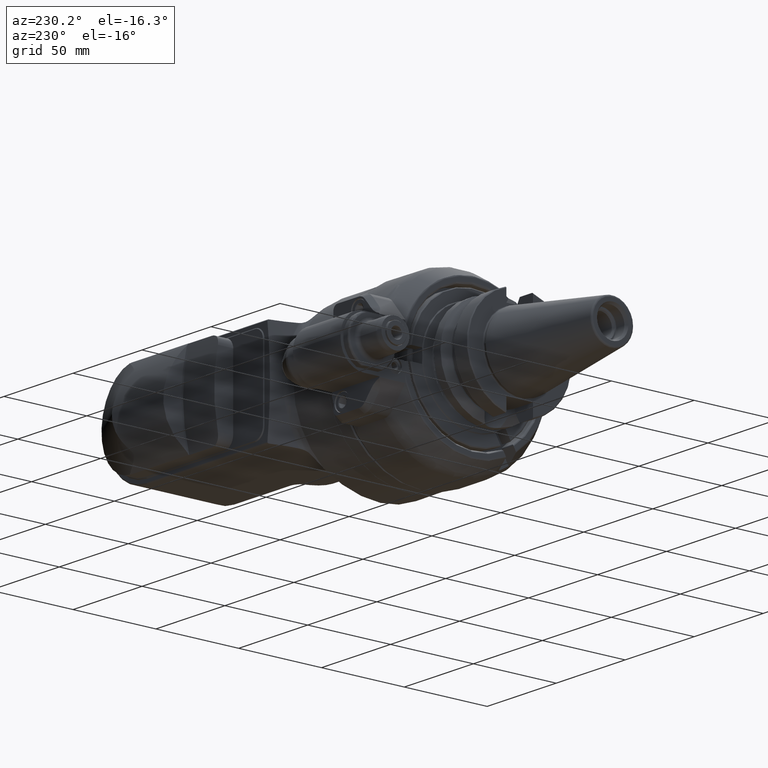
[diagram: clean part render]
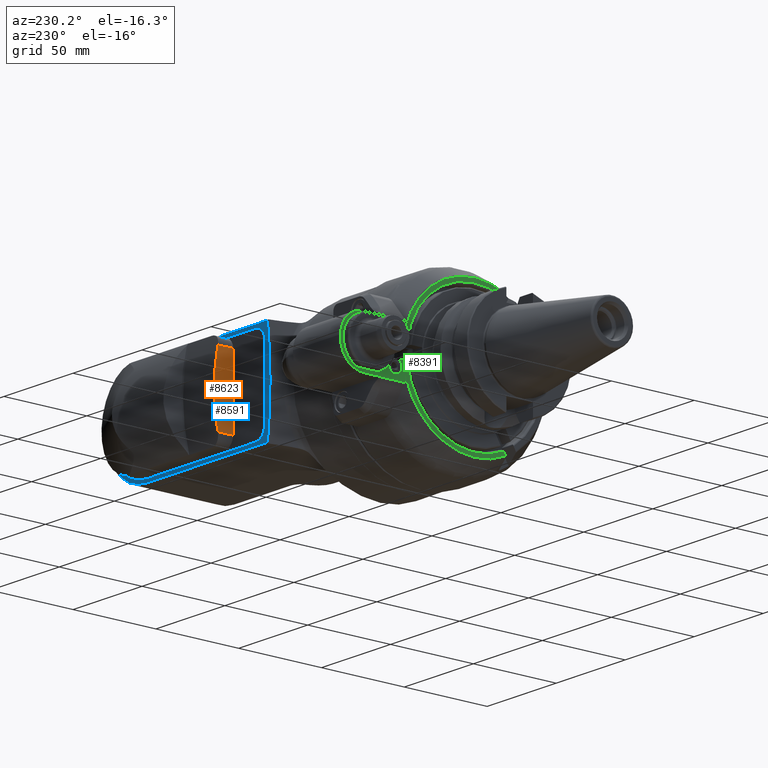
[diagram: same view with three faces highlighted in distinct colors, each labeled with its STEP entity id]
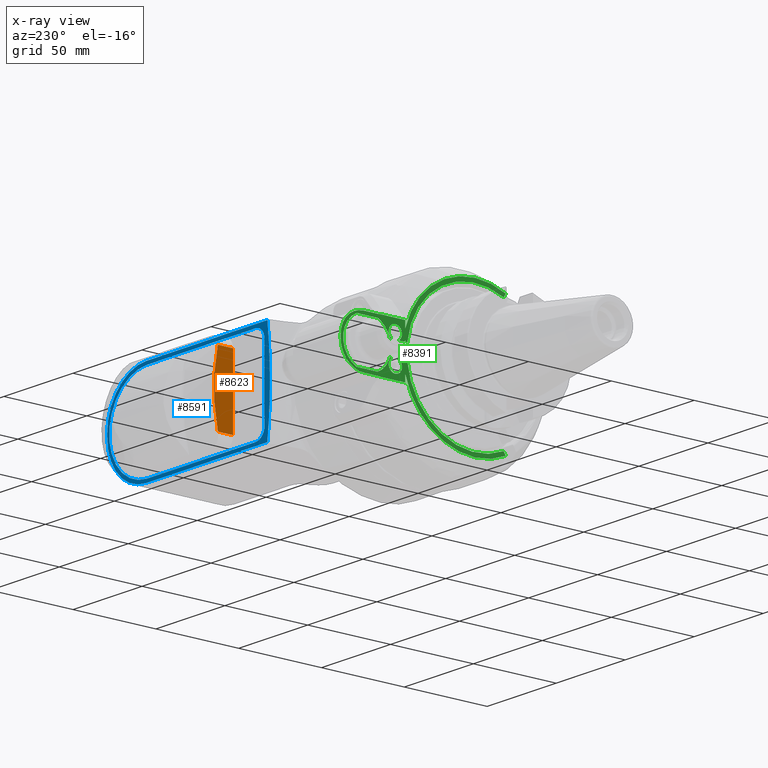
[diagram: x-ray of the same camera — body ghosted, the three highlighted faces saturated]
A machine part, auxiliary view with three faces highlighted in distinct colors.
The next image is the same camera in x-ray (body ghosted, the three faces saturated) — at least one of them is partly hidden behind the body in this view.
Their STEP definitions:

[orange] entity #8623 — the highlighted planar face has unit normal (-1, 0, 0).
#668=LINE('',#16269,#1259);
#669=LINE('',#16272,#1260);
#670=LINE('',#16273,#1261);
#1259=VECTOR('',#11428,9.270138590473);
#1260=VECTOR('',#11431,42.);
#1261=VECTOR('',#11432,9.270138590473);
#2015=FACE_OUTER_BOUND('',#2569,.T.);
#2569=EDGE_LOOP('',(#6919,#6920,#6921,#6922));
#3146=CIRCLE('',#9470,100.);
#3870=VERTEX_POINT('',#16233);
#3871=VERTEX_POINT('',#16244);
#3874=VERTEX_POINT('',#16265);
#3875=VERTEX_POINT('',#16271);
#4956=EDGE_CURVE('',#3871,#3870,#3146,.T.);
#4964=EDGE_CURVE('',#3871,#3874,#668,.T.);
#4965=EDGE_CURVE('',#3875,#3874,#669,.T.);
#4966=EDGE_CURVE('',#3875,#3870,#670,.T.);
#6919=ORIENTED_EDGE('',*,*,#4965,.T.);
#6920=ORIENTED_EDGE('',*,*,#4964,.F.);
#6921=ORIENTED_EDGE('',*,*,#4956,.T.);
#6922=ORIENTED_EDGE('',*,*,#4966,.F.);
#8252=PLANE('',#9476);
#8623=ADVANCED_FACE('',(#2015),#8252,.T.);
#9470=AXIS2_PLACEMENT_3D('',#16245,#11411,#11412);
#9476=AXIS2_PLACEMENT_3D('',#16270,#11429,#11430);
#11411=DIRECTION('center_axis',(-1.,0.,0.));
#11412=DIRECTION('ref_axis',(0.,0.977701385904714,0.210000000000003));
#11428=DIRECTION('',(0.,-1.,-2.721023733713E-14));
#11429=DIRECTION('center_axis',(-1.,0.,0.));
#11430=DIRECTION('ref_axis',(0.,0.,-1.));
#11431=DIRECTION('',(0.,0.,1.));
#11432=DIRECTION('',(0.,1.,-2.644375177834E-14));
#16233=CARTESIAN_POINT('',(-63.,69.77013859047,-21.));
#16244=CARTESIAN_POINT('',(-63.,69.77013859047,21.));
#16245=CARTESIAN_POINT('Origin',(-63.,-28.,0.));
#16265=CARTESIAN_POINT('',(-63.,60.5,21.));
#16269=CARTESIAN_POINT('',(-63.,69.77013859047,21.));
#16270=CARTESIAN_POINT('Origin',(-63.,60.,21.));
#16271=CARTESIAN_POINT('',(-63.,60.5,-21.));
#16272=CARTESIAN_POINT('',(-63.,60.5,-21.));
#16273=CARTESIAN_POINT('',(-63.,60.5,-21.));

[blue] entity #8591 — the highlighted planar face has unit normal (0, -1, 0).
#65=(
BOUNDED_CURVE()
B_SPLINE_CURVE(2,(#15696,#15697,#15698),.UNSPECIFIED.,.F.,.F.)
B_SPLINE_CURVE_WITH_KNOTS((3,3),(-64.9448907529111,-37.8298054529916),
 .UNSPECIFIED.)
CURVE()
GEOMETRIC_REPRESENTATION_ITEM()
RATIONAL_B_SPLINE_CURVE((4.47094782298554,4.99029878578704,4.47094782298539))
REPRESENTATION_ITEM('')
);
#599=LINE('',#15703,#1190);
#617=LINE('',#15977,#1208);
#618=LINE('',#15981,#1209);
#619=LINE('',#15984,#1210);
#620=LINE('',#15986,#1211);
#621=LINE('',#15992,#1212);
#622=LINE('',#15996,#1213);
#623=LINE('',#15999,#1214);
#1190=VECTOR('',#11209,87.60252630069);
#1208=VECTOR('',#11273,51.6025263007);
#1209=VECTOR('',#11276,2.);
#1210=VECTOR('',#11279,10.);
#1211=VECTOR('',#11280,26.);
#1212=VECTOR('',#11285,78.5);
#1213=VECTOR('',#11288,78.5);
#1214=VECTOR('',#11291,42.);
#1718=FACE_BOUND('',#2536,.T.);
#1983=FACE_OUTER_BOUND('',#2535,.T.);
#2535=EDGE_LOOP('',(#6761,#6762,#6763,#6764,#6765,#6766,#6767,#6768));
#2536=EDGE_LOOP('',(#6769,#6770,#6771,#6772,#6773,#6774));
#3128=CIRCLE('',#9425,28.5);
#3129=CIRCLE('',#9426,28.5);
#3130=CIRCLE('',#9427,6.5);
#3131=CIRCLE('',#9428,27.5);
#3132=CIRCLE('',#9429,6.5);
#3798=VERTEX_POINT('',#15677);
#3802=VERTEX_POINT('',#15692);
#3804=VERTEX_POINT('',#15702);
#3827=VERTEX_POINT('',#15973);
#3828=VERTEX_POINT('',#15979);
#3829=VERTEX_POINT('',#15980);
#3830=VERTEX_POINT('',#15983);
#3831=VERTEX_POINT('',#15985);
#3832=VERTEX_POINT('',#15988);
#3833=VERTEX_POINT('',#15989);
#3834=VERTEX_POINT('',#15991);
#3835=VERTEX_POINT('',#15993);
#3836=VERTEX_POINT('',#15995);
#3837=VERTEX_POINT('',#15997);
#4845=EDGE_CURVE('',#3802,#3798,#65,.T.);
#4847=EDGE_CURVE('',#3798,#3804,#599,.T.);
#4886=EDGE_CURVE('',#3827,#3802,#617,.T.);
#4887=EDGE_CURVE('',#3828,#3829,#618,.T.);
#4888=EDGE_CURVE('',#3829,#3804,#3128,.T.);
#4889=EDGE_CURVE('',#3830,#3827,#619,.T.);
#4890=EDGE_CURVE('',#3831,#3830,#620,.T.);
#4891=EDGE_CURVE('',#3831,#3828,#3129,.T.);
#4892=EDGE_CURVE('',#3832,#3833,#3130,.T.);
#4893=EDGE_CURVE('',#3833,#3834,#621,.T.);
#4894=EDGE_CURVE('',#3834,#3835,#3131,.T.);
#4895=EDGE_CURVE('',#3835,#3836,#622,.T.);
#4896=EDGE_CURVE('',#3836,#3837,#3132,.T.);
#4897=EDGE_CURVE('',#3837,#3832,#623,.T.);
#6761=ORIENTED_EDGE('',*,*,#4887,.T.);
#6762=ORIENTED_EDGE('',*,*,#4888,.T.);
#6763=ORIENTED_EDGE('',*,*,#4847,.F.);
#6764=ORIENTED_EDGE('',*,*,#4845,.F.);
#6765=ORIENTED_EDGE('',*,*,#4886,.F.);
#6766=ORIENTED_EDGE('',*,*,#4889,.F.);
#6767=ORIENTED_EDGE('',*,*,#4890,.F.);
#6768=ORIENTED_EDGE('',*,*,#4891,.T.);
#6769=ORIENTED_EDGE('',*,*,#4892,.T.);
#6770=ORIENTED_EDGE('',*,*,#4893,.T.);
#6771=ORIENTED_EDGE('',*,*,#4894,.T.);
#6772=ORIENTED_EDGE('',*,*,#4895,.T.);
#6773=ORIENTED_EDGE('',*,*,#4896,.T.);
#6774=ORIENTED_EDGE('',*,*,#4897,.T.);
#8234=PLANE('',#9424);
#8591=ADVANCED_FACE('',(#1983,#1718),#8234,.F.);
#9424=AXIS2_PLACEMENT_3D('',#15978,#11274,#11275);
#9425=AXIS2_PLACEMENT_3D('',#15982,#11277,#11278);
#9426=AXIS2_PLACEMENT_3D('',#15987,#11281,#11282);
#9427=AXIS2_PLACEMENT_3D('',#15990,#11283,#11284);
#9428=AXIS2_PLACEMENT_3D('',#15994,#11286,#11287);
#9429=AXIS2_PLACEMENT_3D('',#15998,#11289,#11290);
#11209=DIRECTION('',(1.,0.,0.));
#11273=DIRECTION('',(-1.,0.,-1.980058976316E-13));
#11274=DIRECTION('center_axis',(0.,-1.,0.));
#11275=DIRECTION('ref_axis',(-1.,0.,0.));
#11276=DIRECTION('',(0.,0.,-1.));
#11277=DIRECTION('center_axis',(0.,1.,0.));
#11278=DIRECTION('ref_axis',(1.,0.,0.));
#11279=DIRECTION('',(-1.,0.,0.));
#11280=DIRECTION('',(-1.,0.,0.));
#11281=DIRECTION('center_axis',(0.,1.,0.));
#11282=DIRECTION('ref_axis',(0.,0.,1.));
#11283=DIRECTION('center_axis',(0.,-1.,0.));
#11284=DIRECTION('ref_axis',(-1.,0.,0.));
#11285=DIRECTION('',(1.,0.,0.));
#11286=DIRECTION('center_axis',(0.,-1.,0.));
#11287=DIRECTION('ref_axis',(0.,0.,-1.));
#11288=DIRECTION('',(-1.,0.,0.));
#11289=DIRECTION('center_axis',(0.,-1.,0.));
#11290=DIRECTION('ref_axis',(1.53039973856E-14,0.,1.));
#11291=DIRECTION('',(0.,0.,-1.));
#15677=CARTESIAN_POINT('',(-86.6025263007,59.5,-29.5));
#15692=CARTESIAN_POINT('',(-86.6025263007,59.5,29.49999999999));
#15696=CARTESIAN_POINT('Ctrl Pts',(-86.6025263006967,59.5,29.4999999999888));
#15697=CARTESIAN_POINT('Ctrl Pts',(-90.1137020735877,59.5,-3.98614474761416E-12));
#15698=CARTESIAN_POINT('Ctrl Pts',(-86.6025263006955,59.5,-29.4999999999988));
#15702=CARTESIAN_POINT('',(0.999999999998,59.5,-29.5));
#15703=CARTESIAN_POINT('',(-86.6025263007,59.5,-29.5));
#15973=CARTESIAN_POINT('',(-35.,59.5,29.5));
#15977=CARTESIAN_POINT('',(-35.,59.5,29.5));
#15978=CARTESIAN_POINT('Origin',(37.,59.5,-79.8000024));
#15979=CARTESIAN_POINT('',(29.5,59.5,1.));
#15980=CARTESIAN_POINT('',(29.5,59.5,-1.));
#15981=CARTESIAN_POINT('',(29.5,59.5,1.));
#15982=CARTESIAN_POINT('Origin',(0.999999999998,59.5,-1.));
#15983=CARTESIAN_POINT('',(-25.,59.5,29.5));
#15984=CARTESIAN_POINT('',(-25.,59.5,29.5));
#15985=CARTESIAN_POINT('',(0.999999999998,59.5,29.5));
#15986=CARTESIAN_POINT('',(0.999999999998,59.5,29.5));
#15987=CARTESIAN_POINT('Origin',(0.999999999998,59.5,1.));
#15988=CARTESIAN_POINT('',(-84.5,59.5,-21.));
#15989=CARTESIAN_POINT('',(-78.,59.5,-27.5));
#15990=CARTESIAN_POINT('Origin',(-78.,59.5,-21.));
#15991=CARTESIAN_POINT('',(0.5,59.5,-27.5));
#15992=CARTESIAN_POINT('',(-78.,59.5,-27.5));
#15993=CARTESIAN_POINT('',(0.5,59.5,27.5));
#15994=CARTESIAN_POINT('Origin',(0.5,59.5,0.));
#15995=CARTESIAN_POINT('',(-78.,59.5,27.5));
#15996=CARTESIAN_POINT('',(0.5,59.5,27.5));
#15997=CARTESIAN_POINT('',(-84.5,59.5,21.));
#15998=CARTESIAN_POINT('Origin',(-78.,59.5,21.));
#15999=CARTESIAN_POINT('',(-84.5,59.5,21.));

[green] entity #8391 — the highlighted planar face has unit normal (-1, 0, 0).
#344=LINE('',#12886,#935);
#361=LINE('',#12936,#952);
#362=LINE('',#12943,#953);
#363=LINE('',#12947,#954);
#364=LINE('',#12951,#955);
#365=LINE('',#12953,#956);
#366=LINE('',#12957,#957);
#367=LINE('',#12959,#958);
#368=LINE('',#12965,#959);
#369=LINE('',#12969,#960);
#370=LINE('',#12973,#961);
#371=LINE('',#12975,#962);
#372=LINE('',#12977,#963);
#373=LINE('',#12979,#964);
#374=LINE('',#12981,#965);
#375=LINE('',#12983,#966);
#376=LINE('',#12985,#967);
#377=LINE('',#12989,#968);
#378=LINE('',#12992,#969);
#379=LINE('',#12994,#970);
#380=LINE('',#12998,#971);
#381=LINE('',#13002,#972);
#382=LINE('',#13008,#973);
#383=LINE('',#13010,#974);
#384=LINE('',#13014,#975);
#385=LINE('',#13015,#976);
#935=VECTOR('',#10082,0.1128483482606);
#952=VECTOR('',#10123,15.5);
#953=VECTOR('',#10130,12.84523257867);
#954=VECTOR('',#10133,12.84523257867);
#955=VECTOR('',#10136,0.7159512479098);
#956=VECTOR('',#10137,0.3775010008008);
#957=VECTOR('',#10140,0.3775010008008);
#958=VECTOR('',#10141,2.5);
#959=VECTOR('',#10146,0.247699451442);
#960=VECTOR('',#10149,2.43090617210213);
#961=VECTOR('',#10152,4.088942069421);
#962=VECTOR('',#10153,15.5);
#963=VECTOR('',#10154,0.1128483482606);
#964=VECTOR('',#10155,0.7629679276389);
#965=VECTOR('',#10156,10.);
#966=VECTOR('',#10157,10.);
#967=VECTOR('',#10158,8.70839142844);
#968=VECTOR('',#10161,2.);
#969=VECTOR('',#10164,9.5);
#970=VECTOR('',#10165,4.088942069421);
#971=VECTOR('',#10168,2.43091427895297);
#972=VECTOR('',#10171,0.2476994514422);
#973=VECTOR('',#10176,2.5);
#974=VECTOR('',#10177,0.3775010008008);
#975=VECTOR('',#10180,0.3775010008008);
#976=VECTOR('',#10181,0.7159512479098);
#1783=FACE_OUTER_BOUND('',#2309,.T.);
#2309=EDGE_LOOP('',(#5642,#5643,#5644,#5645,#5646,#5647,#5648,#5649,#5650,
#5651,#5652,#5653,#5654,#5655,#5656,#5657,#5658,#5659,#5660,#5661,#5662,
#5663,#5664,#5665,#5666,#5667,#5668,#5669,#5670,#5671,#5672,#5673,#5674,
#5675,#5676,#5677,#5678,#5679,#5680,#5681,#5682));
#2898=CIRCLE('',#8979,14.5);
#2899=CIRCLE('',#8980,14.5);
#2900=CIRCLE('',#8981,14.5);
#2901=CIRCLE('',#8982,4.);
#2902=CIRCLE('',#8983,1.);
#2903=CIRCLE('',#8984,1.);
#2904=CIRCLE('',#8985,41.);
#2905=CIRCLE('',#8986,43.42264973081);
#2906=CIRCLE('',#8987,14.);
#2907=CIRCLE('',#8988,14.);
#2908=CIRCLE('',#8989,43.42264973081);
#2909=CIRCLE('',#8990,41.);
#2910=CIRCLE('',#8991,1.);
#2911=CIRCLE('',#8992,1.);
#2912=CIRCLE('',#8993,4.);
#3420=VERTEX_POINT('',#12883);
#3421=VERTEX_POINT('',#12885);
#3436=VERTEX_POINT('',#12935);
#3437=VERTEX_POINT('',#12939);
#3438=VERTEX_POINT('',#12940);
#3439=VERTEX_POINT('',#12942);
#3440=VERTEX_POINT('',#12944);
#3441=VERTEX_POINT('',#12946);
#3442=VERTEX_POINT('',#12948);
#3443=VERTEX_POINT('',#12950);
#3444=VERTEX_POINT('',#12952);
#3445=VERTEX_POINT('',#12954);
#3446=VERTEX_POINT('',#12956);
#3447=VERTEX_POINT('',#12958);
#3448=VERTEX_POINT('',#12960);
#3449=VERTEX_POINT('',#12962);
#3450=VERTEX_POINT('',#12964);
#3451=VERTEX_POINT('',#12966);
#3452=VERTEX_POINT('',#12968);
#3453=VERTEX_POINT('',#12970);
#3454=VERTEX_POINT('',#12972);
#3455=VERTEX_POINT('',#12974);
#3456=VERTEX_POINT('',#12976);
#3457=VERTEX_POINT('',#12978);
#3458=VERTEX_POINT('',#12980);
#3459=VERTEX_POINT('',#12982);
#3460=VERTEX_POINT('',#12984);
#3461=VERTEX_POINT('',#12986);
#3462=VERTEX_POINT('',#12988);
#3463=VERTEX_POINT('',#12990);
#3464=VERTEX_POINT('',#12993);
#3465=VERTEX_POINT('',#12995);
#3466=VERTEX_POINT('',#12997);
#3467=VERTEX_POINT('',#12999);
#3468=VERTEX_POINT('',#13001);
#3469=VERTEX_POINT('',#13003);
#3470=VERTEX_POINT('',#13005);
#3471=VERTEX_POINT('',#13007);
#3472=VERTEX_POINT('',#13009);
#3473=VERTEX_POINT('',#13011);
#3474=VERTEX_POINT('',#13013);
#4269=EDGE_CURVE('',#3421,#3420,#344,.T.);
#4292=EDGE_CURVE('',#3436,#3420,#361,.T.);
#4294=EDGE_CURVE('',#3437,#3438,#2898,.T.);
#4295=EDGE_CURVE('',#3439,#3437,#362,.T.);
#4296=EDGE_CURVE('',#3440,#3439,#2899,.T.);
#4297=EDGE_CURVE('',#3441,#3440,#363,.T.);
#4298=EDGE_CURVE('',#3442,#3441,#2900,.T.);
#4299=EDGE_CURVE('',#3442,#3443,#364,.T.);
#4300=EDGE_CURVE('',#3444,#3443,#365,.T.);
#4301=EDGE_CURVE('',#3444,#3445,#2901,.T.);
#4302=EDGE_CURVE('',#3446,#3445,#366,.T.);
#4303=EDGE_CURVE('',#3446,#3447,#367,.T.);
#4304=EDGE_CURVE('',#3447,#3448,#2902,.T.);
#4305=EDGE_CURVE('',#3448,#3449,#2903,.T.);
#4306=EDGE_CURVE('',#3450,#3449,#368,.T.);
#4307=EDGE_CURVE('',#3450,#3451,#2904,.T.);
#4308=EDGE_CURVE('',#3451,#3452,#369,.T.);
#4309=EDGE_CURVE('',#3452,#3453,#2905,.T.);
#4310=EDGE_CURVE('',#3453,#3454,#370,.T.);
#4311=EDGE_CURVE('',#3455,#3454,#371,.T.);
#4312=EDGE_CURVE('',#3455,#3456,#372,.T.);
#4313=EDGE_CURVE('',#3457,#3456,#373,.T.);
#4314=EDGE_CURVE('',#3457,#3458,#374,.T.);
#4315=EDGE_CURVE('',#3458,#3459,#375,.T.);
#4316=EDGE_CURVE('',#3460,#3459,#376,.T.);
#4317=EDGE_CURVE('',#3460,#3461,#2906,.T.);
#4318=EDGE_CURVE('',#3461,#3462,#377,.T.);
#4319=EDGE_CURVE('',#3462,#3463,#2907,.T.);
#4320=EDGE_CURVE('',#3463,#3421,#378,.T.);
#4321=EDGE_CURVE('',#3464,#3436,#379,.T.);
#4322=EDGE_CURVE('',#3464,#3465,#2908,.T.);
#4323=EDGE_CURVE('',#3465,#3466,#380,.T.);
#4324=EDGE_CURVE('',#3466,#3467,#2909,.T.);
#4325=EDGE_CURVE('',#3467,#3468,#381,.T.);
#4326=EDGE_CURVE('',#3468,#3469,#2910,.T.);
#4327=EDGE_CURVE('',#3469,#3470,#2911,.T.);
#4328=EDGE_CURVE('',#3470,#3471,#382,.T.);
#4329=EDGE_CURVE('',#3472,#3471,#383,.T.);
#4330=EDGE_CURVE('',#3472,#3473,#2912,.T.);
#4331=EDGE_CURVE('',#3474,#3473,#384,.T.);
#4332=EDGE_CURVE('',#3474,#3438,#385,.T.);
#5642=ORIENTED_EDGE('',*,*,#4294,.F.);
#5643=ORIENTED_EDGE('',*,*,#4295,.F.);
#5644=ORIENTED_EDGE('',*,*,#4296,.F.);
#5645=ORIENTED_EDGE('',*,*,#4297,.F.);
#5646=ORIENTED_EDGE('',*,*,#4298,.F.);
#5647=ORIENTED_EDGE('',*,*,#4299,.T.);
#5648=ORIENTED_EDGE('',*,*,#4300,.F.);
#5649=ORIENTED_EDGE('',*,*,#4301,.T.);
#5650=ORIENTED_EDGE('',*,*,#4302,.F.);
#5651=ORIENTED_EDGE('',*,*,#4303,.T.);
#5652=ORIENTED_EDGE('',*,*,#4304,.T.);
#5653=ORIENTED_EDGE('',*,*,#4305,.T.);
#5654=ORIENTED_EDGE('',*,*,#4306,.F.);
#5655=ORIENTED_EDGE('',*,*,#4307,.T.);
#5656=ORIENTED_EDGE('',*,*,#4308,.T.);
#5657=ORIENTED_EDGE('',*,*,#4309,.T.);
#5658=ORIENTED_EDGE('',*,*,#4310,.T.);
#5659=ORIENTED_EDGE('',*,*,#4311,.F.);
#5660=ORIENTED_EDGE('',*,*,#4312,.T.);
#5661=ORIENTED_EDGE('',*,*,#4313,.F.);
#5662=ORIENTED_EDGE('',*,*,#4314,.T.);
#5663=ORIENTED_EDGE('',*,*,#4315,.T.);
#5664=ORIENTED_EDGE('',*,*,#4316,.F.);
#5665=ORIENTED_EDGE('',*,*,#4317,.T.);
#5666=ORIENTED_EDGE('',*,*,#4318,.T.);
#5667=ORIENTED_EDGE('',*,*,#4319,.T.);
#5668=ORIENTED_EDGE('',*,*,#4320,.T.);
#5669=ORIENTED_EDGE('',*,*,#4269,.T.);
#5670=ORIENTED_EDGE('',*,*,#4292,.F.);
#5671=ORIENTED_EDGE('',*,*,#4321,.F.);
#5672=ORIENTED_EDGE('',*,*,#4322,.T.);
#5673=ORIENTED_EDGE('',*,*,#4323,.T.);
#5674=ORIENTED_EDGE('',*,*,#4324,.T.);
#5675=ORIENTED_EDGE('',*,*,#4325,.T.);
#5676=ORIENTED_EDGE('',*,*,#4326,.T.);
#5677=ORIENTED_EDGE('',*,*,#4327,.T.);
#5678=ORIENTED_EDGE('',*,*,#4328,.T.);
#5679=ORIENTED_EDGE('',*,*,#4329,.F.);
#5680=ORIENTED_EDGE('',*,*,#4330,.T.);
#5681=ORIENTED_EDGE('',*,*,#4331,.F.);
#5682=ORIENTED_EDGE('',*,*,#4332,.T.);
#8143=PLANE('',#8978);
#8391=ADVANCED_FACE('',(#1783),#8143,.T.);
#8978=AXIS2_PLACEMENT_3D('',#12938,#10126,#10127);
#8979=AXIS2_PLACEMENT_3D('',#12941,#10128,#10129);
#8980=AXIS2_PLACEMENT_3D('',#12945,#10131,#10132);
#8981=AXIS2_PLACEMENT_3D('',#12949,#10134,#10135);
#8982=AXIS2_PLACEMENT_3D('',#12955,#10138,#10139);
#8983=AXIS2_PLACEMENT_3D('',#12961,#10142,#10143);
#8984=AXIS2_PLACEMENT_3D('',#12963,#10144,#10145);
#8985=AXIS2_PLACEMENT_3D('',#12967,#10147,#10148);
#8986=AXIS2_PLACEMENT_3D('',#12971,#10150,#10151);
#8987=AXIS2_PLACEMENT_3D('',#12987,#10159,#10160);
#8988=AXIS2_PLACEMENT_3D('',#12991,#10162,#10163);
#8989=AXIS2_PLACEMENT_3D('',#12996,#10166,#10167);
#8990=AXIS2_PLACEMENT_3D('',#13000,#10169,#10170);
#8991=AXIS2_PLACEMENT_3D('',#13004,#10172,#10173);
#8992=AXIS2_PLACEMENT_3D('',#13006,#10174,#10175);
#8993=AXIS2_PLACEMENT_3D('',#13012,#10178,#10179);
#10082=DIRECTION('',(0.,0.,-1.));
#10123=DIRECTION('',(0.,1.,0.));
#10126=DIRECTION('center_axis',(-1.,0.,0.));
#10127=DIRECTION('ref_axis',(0.,-1.,0.));
#10128=DIRECTION('center_axis',(-1.,0.,0.));
#10129=DIRECTION('ref_axis',(0.,-0.442939054436718,-0.896551724137936));
#10130=DIRECTION('',(0.,-1.,0.));
#10131=DIRECTION('center_axis',(-1.,0.,0.));
#10132=DIRECTION('ref_axis',(0.,0.442939054436718,0.896551724137936));
#10133=DIRECTION('',(0.,1.,0.));
#10134=DIRECTION('center_axis',(-1.,0.,0.));
#10135=DIRECTION('ref_axis',(0.,-0.950624051868294,0.310344827586198));
#10136=DIRECTION('',(0.,-1.,0.));
#10137=DIRECTION('',(0.,0.,-1.));
#10138=DIRECTION('center_axis',(1.,0.,0.));
#10139=DIRECTION('ref_axis',(0.,0.625,-0.7806247497998));
#10140=DIRECTION('',(0.,3.764454845168E-14,1.));
#10141=DIRECTION('',(0.,-1.,0.));
#10142=DIRECTION('center_axis',(-1.,0.,0.));
#10143=DIRECTION('ref_axis',(0.,0.,-1.));
#10144=DIRECTION('center_axis',(-1.,0.,0.));
#10145=DIRECTION('ref_axis',(0.,1.,0.));
#10146=DIRECTION('',(-2.294854450823E-13,1.,-2.868568063529E-14));
#10147=DIRECTION('center_axis',(1.,0.,0.));
#10148=DIRECTION('ref_axis',(0.,0.993958549964826,0.109756097561003));
#10149=DIRECTION('',(0.,-0.500000000012273,0.866025403777353));
#10150=DIRECTION('center_axis',(-1.,0.,0.));
#10151=DIRECTION('ref_axis',(0.,-0.428568809891686,0.90350914504947));
#10152=DIRECTION('',(0.,0.,1.));
#10153=DIRECTION('',(0.,-1.,0.));
#10154=DIRECTION('',(-1.007430232466E-12,0.,-1.));
#10155=DIRECTION('',(9.68539329664E-13,-1.,-3.073494259101E-9));
#10156=DIRECTION('',(0.,0.859070673556442,-0.511856989632144));
#10157=DIRECTION('',(0.,0.150249419540475,0.98864812341285));
#10158=DIRECTION('',(0.,-1.,0.));
#10159=DIRECTION('center_axis',(-1.,0.,0.));
#10160=DIRECTION('ref_axis',(0.,0.,1.));
#10161=DIRECTION('',(0.,0.,-1.));
#10162=DIRECTION('center_axis',(-1.,0.,0.));
#10163=DIRECTION('ref_axis',(0.,1.,0.));
#10164=DIRECTION('',(0.,-1.,0.));
#10165=DIRECTION('',(0.,0.,-1.));
#10166=DIRECTION('center_axis',(-1.,0.,0.));
#10167=DIRECTION('ref_axis',(0.,0.967237150666087,-0.253874564246497));
#10168=DIRECTION('',(0.,0.500000000011306,0.866025403777911));
#10169=DIRECTION('center_axis',(1.,0.,0.));
#10170=DIRECTION('ref_axis',(0.,-0.424245838651586,-0.905547054761271));
#10171=DIRECTION('',(-2.294854450821E-13,1.,0.));
#10172=DIRECTION('center_axis',(-1.,0.,0.));
#10173=DIRECTION('ref_axis',(0.,1.42108547152E-14,1.));
#10174=DIRECTION('center_axis',(-1.,0.,0.));
#10175=DIRECTION('ref_axis',(0.,-1.,-1.216804434989E-13));
#10176=DIRECTION('',(0.,1.,0.));
#10177=DIRECTION('',(0.,3.764454845168E-14,1.));
#10178=DIRECTION('center_axis',(1.,0.,0.));
#10179=DIRECTION('ref_axis',(0.,-0.625,0.7806247497998));
#10180=DIRECTION('',(0.,0.,-1.));
#10181=DIRECTION('',(0.,1.,0.));
#12883=CARTESIAN_POINT('',(-165.5,57.5,-15.11284834826));
#12885=CARTESIAN_POINT('',(-165.5,57.5,-15.));
#12886=CARTESIAN_POINT('',(-165.5,57.5,-15.));
#12935=CARTESIAN_POINT('',(-165.5,42.,-15.11284834826));
#12936=CARTESIAN_POINT('',(-165.5,42.,-15.11284834826));
#12938=CARTESIAN_POINT('Origin',(-165.5,-40.75,0.));
#12939=CARTESIAN_POINT('',(-165.5,58.57738371067,-13.));
#12940=CARTESIAN_POINT('',(-165.5,51.21595124791,-4.5));
#12941=CARTESIAN_POINT('Origin',(-165.5,65.,0.));
#12942=CARTESIAN_POINT('',(-165.5,71.42261628933,-13.));
#12943=CARTESIAN_POINT('',(-165.5,71.42261628933,-13.));
#12944=CARTESIAN_POINT('',(-165.5,71.42261628933,13.));
#12945=CARTESIAN_POINT('Origin',(-165.5,65.,0.));
#12946=CARTESIAN_POINT('',(-165.5,58.57738371067,13.));
#12947=CARTESIAN_POINT('',(-165.5,58.57738371067,13.));
#12948=CARTESIAN_POINT('',(-165.5,51.21595124791,4.5));
#12949=CARTESIAN_POINT('Origin',(-165.5,65.,0.));
#12950=CARTESIAN_POINT('',(-165.5,50.5,4.5));
#12951=CARTESIAN_POINT('',(-165.5,51.21595124791,4.5));
#12952=CARTESIAN_POINT('',(-165.5,50.5,4.877501000801));
#12953=CARTESIAN_POINT('',(-165.5,50.5,4.877501000801));
#12954=CARTESIAN_POINT('',(-165.5,45.5,4.877501000801));
#12955=CARTESIAN_POINT('Origin',(-165.5,48.,8.));
#12956=CARTESIAN_POINT('',(-165.5,45.5,4.5));
#12957=CARTESIAN_POINT('',(-165.5,45.5,4.5));
#12958=CARTESIAN_POINT('',(-165.5,43.,4.5));
#12959=CARTESIAN_POINT('',(-165.5,45.5,4.5));
#12960=CARTESIAN_POINT('',(-165.5,42.,5.5));
#12961=CARTESIAN_POINT('Origin',(-165.5,43.,5.5));
#12962=CARTESIAN_POINT('',(-165.5,41.,4.5));
#12963=CARTESIAN_POINT('Origin',(-165.5,41.,5.5));
#12964=CARTESIAN_POINT('',(-165.5,40.75230054856,4.5));
#12965=CARTESIAN_POINT('',(-165.5,40.75230054856,4.5));
#12966=CARTESIAN_POINT('',(-165.5,-17.39407938471,37.12742924521));
#12967=CARTESIAN_POINT('Origin',(-165.5,0.,0.));
#12968=CARTESIAN_POINT('',(-165.499999999988,-18.6095932938698,39.2327610999538));
#12969=CARTESIAN_POINT('',(-165.5,-17.39407938471,37.12742924521));
#12970=CARTESIAN_POINT('',(-165.5,42.,11.02390627884));
#12971=CARTESIAN_POINT('Origin',(-165.5,0.,0.));
#12972=CARTESIAN_POINT('',(-165.5,42.,15.11284834826));
#12973=CARTESIAN_POINT('',(-165.5,42.,11.02390627884));
#12974=CARTESIAN_POINT('',(-165.5,57.5,15.11284834826));
#12975=CARTESIAN_POINT('',(-165.5,57.5,15.11284834826));
#12976=CARTESIAN_POINT('',(-165.5,57.5,15.));
#12977=CARTESIAN_POINT('',(-165.5,57.5,15.11284834826));
#12978=CARTESIAN_POINT('',(-165.5000000002,58.2629679281064,15.0000000023428));
#12979=CARTESIAN_POINT('',(-165.5,58.26296792764,15.00000000234));
#12980=CARTESIAN_POINT('',(-165.5,58.28923048454,14.98435207752));
#12981=CARTESIAN_POINT('',(-165.5,58.26296792764,15.00000000234));
#12982=CARTESIAN_POINT('',(-165.5,58.29160857156,15.));
#12983=CARTESIAN_POINT('',(-165.5,58.28923048454,14.98435207752));
#12984=CARTESIAN_POINT('',(-165.5,67.,15.));
#12985=CARTESIAN_POINT('',(-165.5,67.,15.));
#12986=CARTESIAN_POINT('',(-165.5,81.,1.));
#12987=CARTESIAN_POINT('Origin',(-165.5,67.,1.));
#12988=CARTESIAN_POINT('',(-165.5,81.,-1.));
#12989=CARTESIAN_POINT('',(-165.5,81.,1.));
#12990=CARTESIAN_POINT('',(-165.5,67.,-15.));
#12991=CARTESIAN_POINT('Origin',(-165.5,67.,-1.));
#12992=CARTESIAN_POINT('',(-165.5,67.,-15.));
#12993=CARTESIAN_POINT('',(-165.5,42.,-11.02390627884));
#12994=CARTESIAN_POINT('',(-165.5,42.,-11.02390627884));
#12995=CARTESIAN_POINT('',(-165.499999999989,-18.6095932954489,-39.2327611022235));
#12996=CARTESIAN_POINT('Origin',(-165.5,0.,0.));
#12997=CARTESIAN_POINT('',(-165.5,-17.39407938471,-37.12742924521));
#12998=CARTESIAN_POINT('',(-165.5,-18.60953652422,-39.23266276519));
#12999=CARTESIAN_POINT('',(-165.5,40.75230054856,-4.5));
#13000=CARTESIAN_POINT('Origin',(-165.5,0.,0.));
#13001=CARTESIAN_POINT('',(-165.5,41.,-4.5));
#13002=CARTESIAN_POINT('',(-165.5,40.75230054856,-4.5));
#13003=CARTESIAN_POINT('',(-165.5,42.,-5.5));
#13004=CARTESIAN_POINT('Origin',(-165.5,41.,-5.5));
#13005=CARTESIAN_POINT('',(-165.5,43.,-4.5));
#13006=CARTESIAN_POINT('Origin',(-165.5,43.,-5.5));
#13007=CARTESIAN_POINT('',(-165.5,45.5,-4.5));
#13008=CARTESIAN_POINT('',(-165.5,43.,-4.5));
#13009=CARTESIAN_POINT('',(-165.5,45.5,-4.877501000801));
#13010=CARTESIAN_POINT('',(-165.5,45.5,-4.877501000801));
#13011=CARTESIAN_POINT('',(-165.5,50.5,-4.877501000801));
#13012=CARTESIAN_POINT('Origin',(-165.5,48.,-8.));
#13013=CARTESIAN_POINT('',(-165.5,50.5,-4.5));
#13014=CARTESIAN_POINT('',(-165.5,50.5,-4.5));
#13015=CARTESIAN_POINT('',(-165.5,50.5,-4.5));